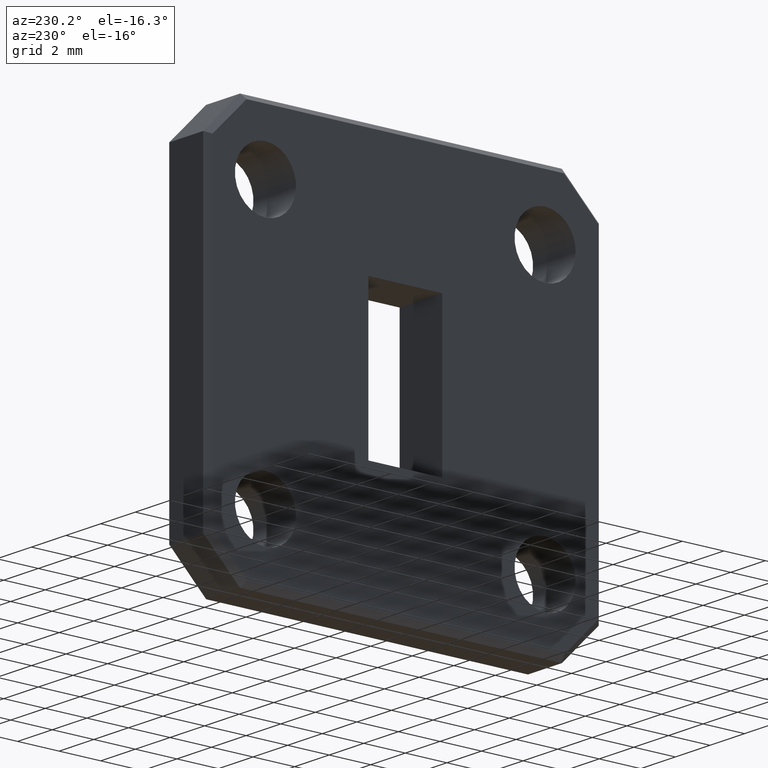
[diagram: clean part render]
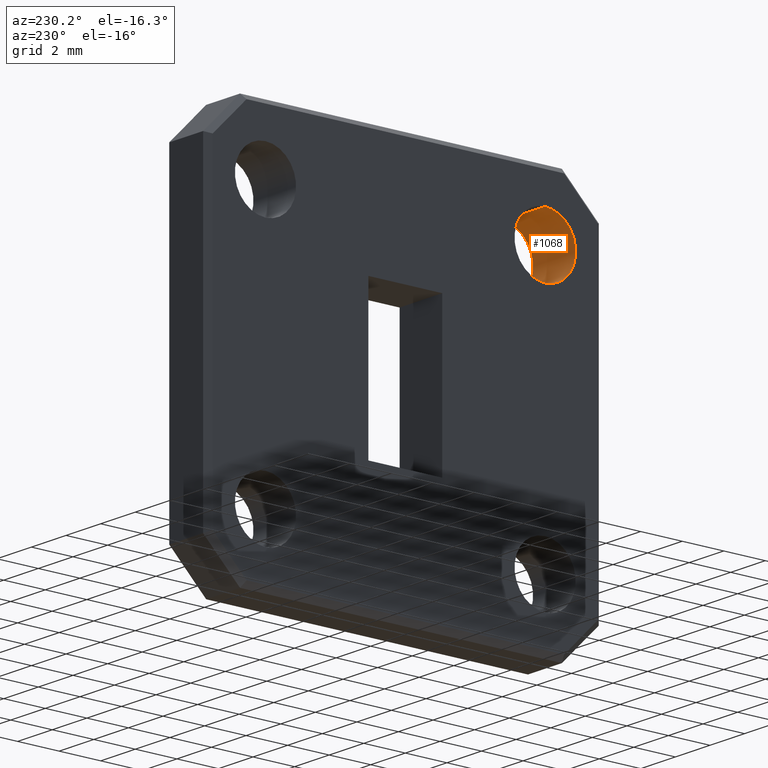
[diagram: same view with one face highlighted and labeled with its STEP entity id]
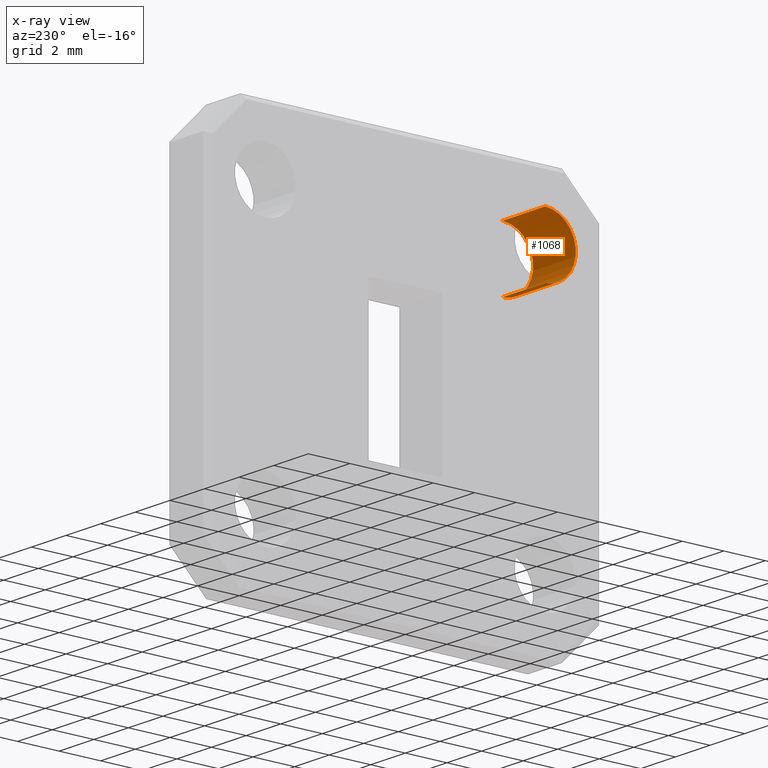
[diagram: x-ray of the same camera — body ghosted, the highlighted face saturated]
A machine part, auxiliary view. The second image highlights one B-rep face of the part: STEP entity #1068.
The next image is the same camera in x-ray: the body ghosted, the highlighted face saturated — about 5% of this face is hidden behind the body in this view.
In plain terms, the highlighted cylindrical surface (partial cylindrical patch) has radius 1.4732 mm, axis along (1, -0, -0).
Its self-contained STEP definition (entity closure, byte-faithful):
#4 = DIRECTION ( 'NONE',  ( 1.000000000000000000, -0.000000000000000000, -0.000000000000000000 ) ) ;
#56 = AXIS2_PLACEMENT_3D ( 'NONE', #988, #635, #273 ) ;
#77 = VECTOR ( 'NONE', #4, 39.37007874015748143 ) ;
#83 = EDGE_CURVE ( 'NONE', #515, #781, #266, .T. ) ;
#101 = CARTESIAN_POINT ( 'NONE',  ( 0.09700000000000004452, -0.2650000000000000133, 0.1920000000000005036 ) ) ;
#106 = AXIS2_PLACEMENT_3D ( 'NONE', #1021, #754, #664 ) ;
#110 = CARTESIAN_POINT ( 'NONE',  ( 0.09700000000000000289, -0.2650000000000000133, 0.3079999999999997184 ) ) ;
#130 = CARTESIAN_POINT ( 'NONE',  ( 0.09700000000000000289, -0.2650000000000000133, 0.1920000000000002538 ) ) ;
#153 = VERTEX_POINT ( 'NONE', #706 ) ;
#230 = LINE ( 'NONE', #130, #1010 ) ;
#236 = DIRECTION ( 'NONE',  ( 1.000000000000000000, -0.000000000000000000, -0.000000000000000000 ) ) ;
#266 = CIRCLE ( 'NONE', #1009, 0.05799999999999948946 ) ;
#273 = DIRECTION ( 'NONE',  ( 0.000000000000000000, 0.000000000000000000, -1.000000000000000000 ) ) ;
#286 = VERTEX_POINT ( 'NONE', #1034 ) ;
#329 = EDGE_CURVE ( 'NONE', #153, #286, #675, .T. ) ;
#464 = CARTESIAN_POINT ( 'NONE',  ( 0.09700000000000004452, -0.2650000000000000133, 0.2500000000000000000 ) ) ;
#514 = EDGE_CURVE ( 'NONE', #286, #781, #230, .T. ) ;
#515 = VERTEX_POINT ( 'NONE', #784 ) ;
#570 = LINE ( 'NONE', #110, #77 ) ;
#617 = ORIENTED_EDGE ( 'NONE', *, *, #329, .F. ) ;
#635 = DIRECTION ( 'NONE',  ( 1.000000000000000000, -0.000000000000000000, -0.000000000000000000 ) ) ;
#664 = DIRECTION ( 'NONE',  ( 0.000000000000000000, 0.000000000000000000, -1.000000000000000000 ) ) ;
#675 = CIRCLE ( 'NONE', #106, 0.05799999999999973233 ) ;
#691 = ORIENTED_EDGE ( 'NONE', *, *, #83, .T. ) ;
#706 = CARTESIAN_POINT ( 'NONE',  ( 0.000000000000000000, -0.2650000000000000133, 0.3079999999999997740 ) ) ;
#728 = FACE_OUTER_BOUND ( 'NONE', #994, .T. ) ;
#754 = DIRECTION ( 'NONE',  ( 1.000000000000000000, -0.000000000000000000, 0.000000000000000000 ) ) ;
#771 = ORIENTED_EDGE ( 'NONE', *, *, #1170, .T. ) ;
#781 = VERTEX_POINT ( 'NONE', #101 ) ;
#784 = CARTESIAN_POINT ( 'NONE',  ( 0.09700000000000004452, -0.2650000000000000133, 0.3079999999999994964 ) ) ;
#837 = DIRECTION ( 'NONE',  ( 1.000000000000000000, -0.000000000000000000, -0.000000000000000000 ) ) ;
#988 = CARTESIAN_POINT ( 'NONE',  ( 0.09700000000000000289, -0.2650000000000000133, 0.2500000000000000000 ) ) ;
#994 = EDGE_LOOP ( 'NONE', ( #617, #771, #691, #1062 ) ) ;
#1009 = AXIS2_PLACEMENT_3D ( 'NONE', #464, #837, #1016 ) ;
#1010 = VECTOR ( 'NONE', #236, 39.37007874015748143 ) ;
#1016 = DIRECTION ( 'NONE',  ( 0.000000000000000000, 0.000000000000000000, -1.000000000000000000 ) ) ;
#1021 = CARTESIAN_POINT ( 'NONE',  ( 0.000000000000000000, -0.2650000000000000133, 0.2500000000000000000 ) ) ;
#1034 = CARTESIAN_POINT ( 'NONE',  ( 0.000000000000000000, -0.2650000000000000133, 0.1920000000000002538 ) ) ;
#1062 = ORIENTED_EDGE ( 'NONE', *, *, #514, .F. ) ;
#1068 = ADVANCED_FACE ( 'NONE', ( #728 ), #1081, .F. ) ;
#1081 = CYLINDRICAL_SURFACE ( 'NONE', #56, 0.05799999999999973233 ) ;
#1170 = EDGE_CURVE ( 'NONE', #153, #515, #570, .T. ) ;